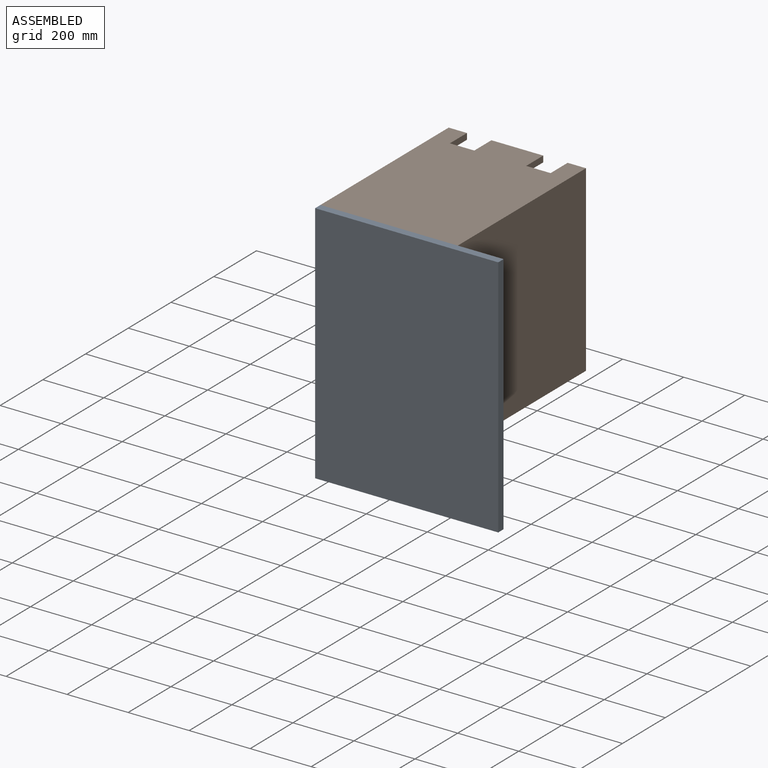
[diagram: assembled view]
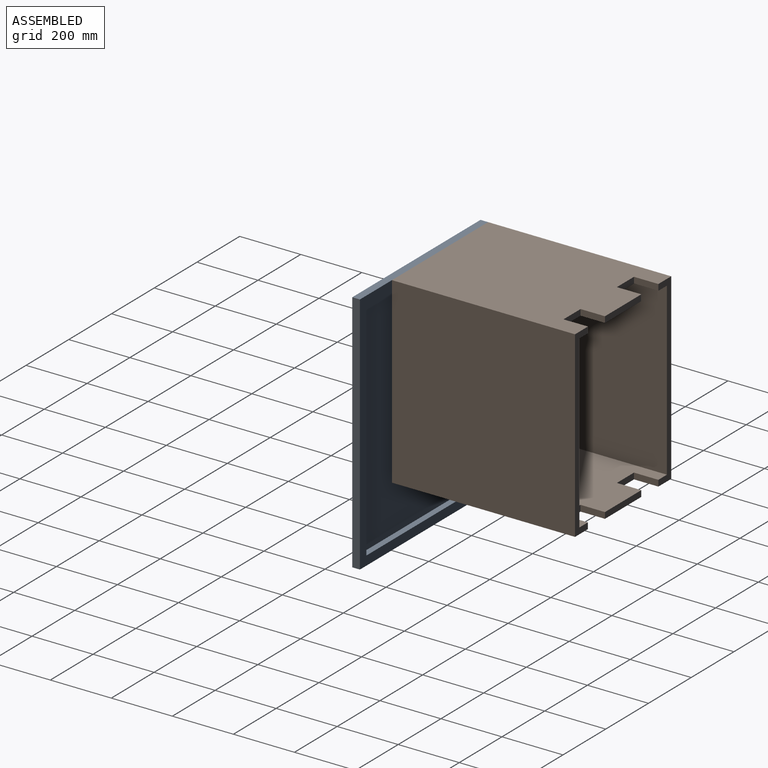
[diagram: assembled view, second angle]
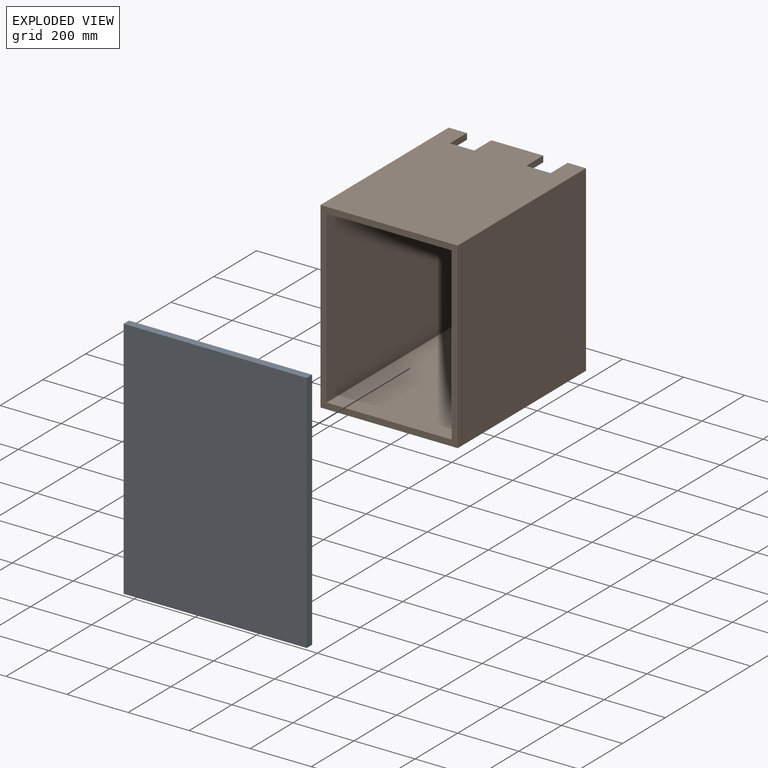
[diagram: exploded view]
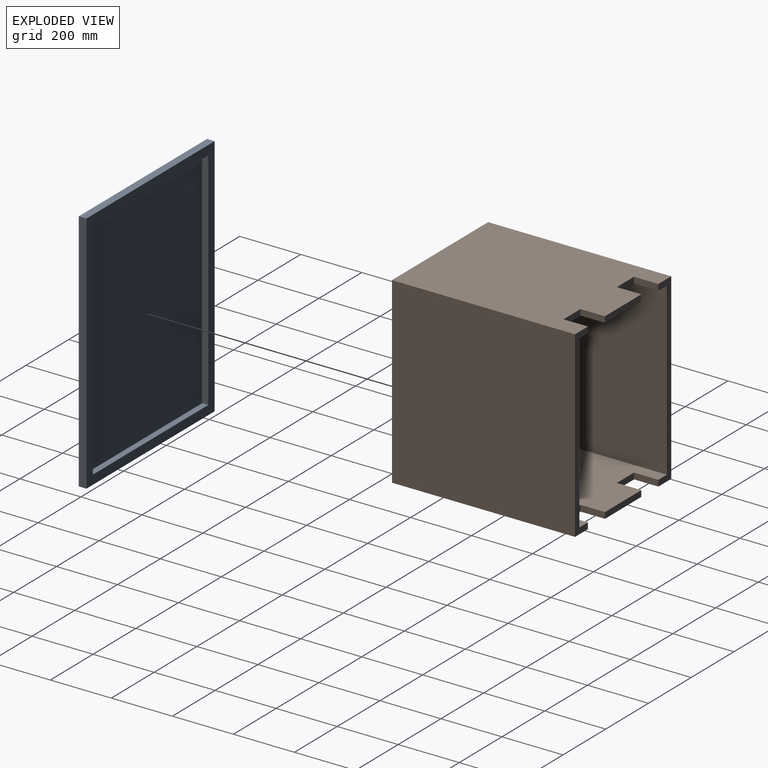
[diagram: exploded view, second angle]
ASSEMBLY  parts=2 mates=3
PART A: 11 faces, bbox 600x25x800 mm
  f0: plane 800x600mm, normal (0,1,0), area 80400mm2, adj f1,f2,f3,f4,f6,f7,f8,f9
  f1: plane 600x25mm, normal (0,0,1), area 15000mm2, adj f0,f2,f4,f5
  f2: plane 800x25mm, normal (-1,0,0), area 20000mm2, adj f0,f1,f3,f5
  f3: plane 600x25mm, normal (0,0,-1), area 15000mm2, adj f0,f2,f4,f5
  f4: plane 800x25mm, normal (1,0,0), area 20000mm2, adj f0,f1,f3,f5
  f5: plane 800x600mm, normal (0,-1,0), area 480000mm2, adj f1,f2,f3,f4
  f6: plane 740x20mm, normal (1,0,0), area 14800mm2, adj f0,f7,f9,f10
  f7: plane 540x20mm, normal (0,0,-1), area 10800mm2, adj f0,f6,f8,f10
  f8: plane 740x20mm, normal (-1,0,0), area 14800mm2, adj f0,f7,f9,f10
  f9: plane 540x20mm, normal (0,0,1), area 10800mm2, adj f0,f6,f8,f10
  f10: plane 740x540mm, normal (0,1,0), area 399600mm2, adj f6,f7,f8,f9
PART B: 25 faces, bbox 450x600x600 mm
  f0: plane 170x20mm, normal (0,1,0), area 3400mm2, adj f3,f5,f13,f21
  f1: plane 170x20mm, normal (0,1,0), area 3400mm2, adj f2,f4,f18,f22
  f2: plane 600x450mm, normal (0,0,1), area 257200mm2, adj f1,f6,f7,f8,f9,f10,f16,f17
  f3: plane 600x450mm, normal (0,0,-1), area 257200mm2, adj f0,f6,f7,f8,f9,f10,f13,f14
  f4: plane 600x410mm, normal (0,0,-1), area 233200mm2, adj f1,f6,f7,f8,f11,f12,f16,f17
  f5: plane 600x410mm, normal (0,0,1), area 233200mm2, adj f0,f6,f7,f8,f11,f12,f13,f14
  f6: plane 600x60mm, normal (0,1,0), area 13600mm2, adj f2,f3,f4,f5,f9,f11,f15,f16
  f7: plane 600x450mm, normal (0,-1,0), area 40400mm2, adj f2,f3,f4,f5,f9,f10,f11,f12
  f8: plane 600x60mm, normal (0,1,0), area 13600mm2, adj f2,f3,f4,f5,f10,f12,f19,f24
  f9: plane 600x600mm, normal (-1,0,0), area 360000mm2, adj f2,f3,f6,f7
  f10: plane 600x600mm, normal (1,0,0), area 360000mm2, adj f2,f3,f7,f8
  f11: plane 600x560mm, normal (1,0,0), area 336000mm2, adj f4,f5,f6,f7
  f12: plane 600x560mm, normal (-1,0,0), area 336000mm2, adj f4,f5,f7,f8
  f13: plane 80x20mm, normal (-1,0,0), area 1600mm2, adj f0,f3,f5,f14
  f14: plane 80x20mm, normal (0,1,0), area 1600mm2, adj f3,f5,f13,f15
  f15: plane 80x20mm, normal (1,0,0), area 1600mm2, adj f3,f5,f6,f14
  f16: plane 80x20mm, normal (1,0,0), area 1600mm2, adj f2,f4,f6,f17
  f17: plane 80x20mm, normal (0,1,0), area 1600mm2, adj f2,f4,f16,f18
  f18: plane 80x20mm, normal (-1,0,0), area 1600mm2, adj f1,f2,f4,f17
  f19: plane 80x20mm, normal (-1,0,0), area 1600mm2, adj f3,f5,f8,f20
  f20: plane 80x20mm, normal (0,1,0), area 1600mm2, adj f3,f5,f19,f21
  f21: plane 80x20mm, normal (1,0,0), area 1600mm2, adj f0,f3,f5,f20
  f22: plane 80x20mm, normal (1,0,0), area 1600mm2, adj f1,f2,f4,f23
  f23: plane 80x20mm, normal (0,1,0), area 1600mm2, adj f2,f4,f22,f24
  f24: plane 80x20mm, normal (-1,0,0), area 1600mm2, adj f2,f4,f8,f23
PLACE A t=(79.81,-299.66,-3.65)mm
PLACE B t=(4.81,300.34,96.35)mm
MATE planar A.f0 <-> B.f7  axis (0,1,0) through (79.81,-299.66,-3.65)mm
MATE planar A.f2 <-> B.f9  axis (-1,0,0) through (-220.19,-312.16,-3.65)mm
MATE planar B.f2 <-> A.f1  axis (0,0,1) through (4.81,-12.6,396.35)mm
